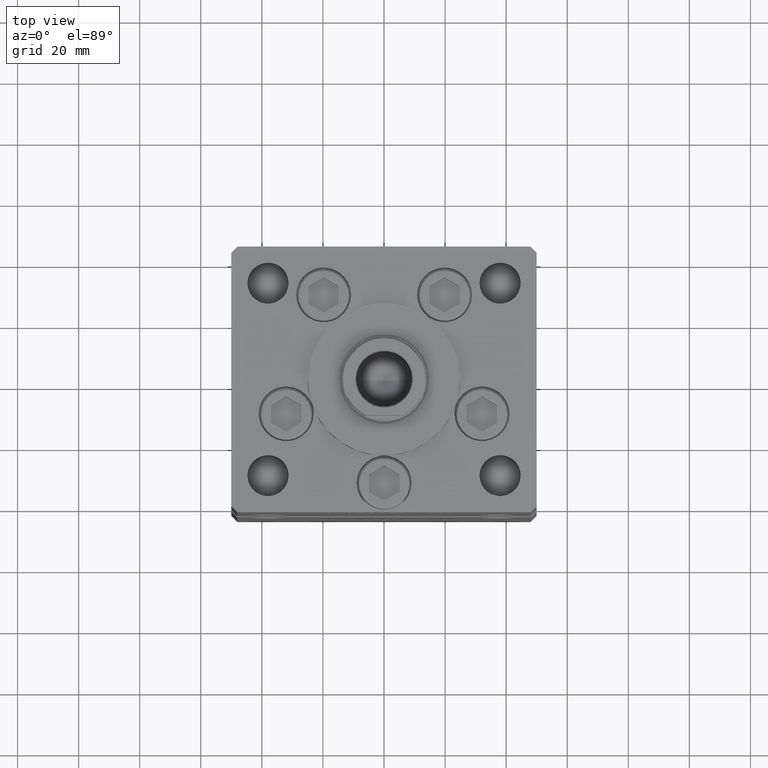
[diagram: clean part render]
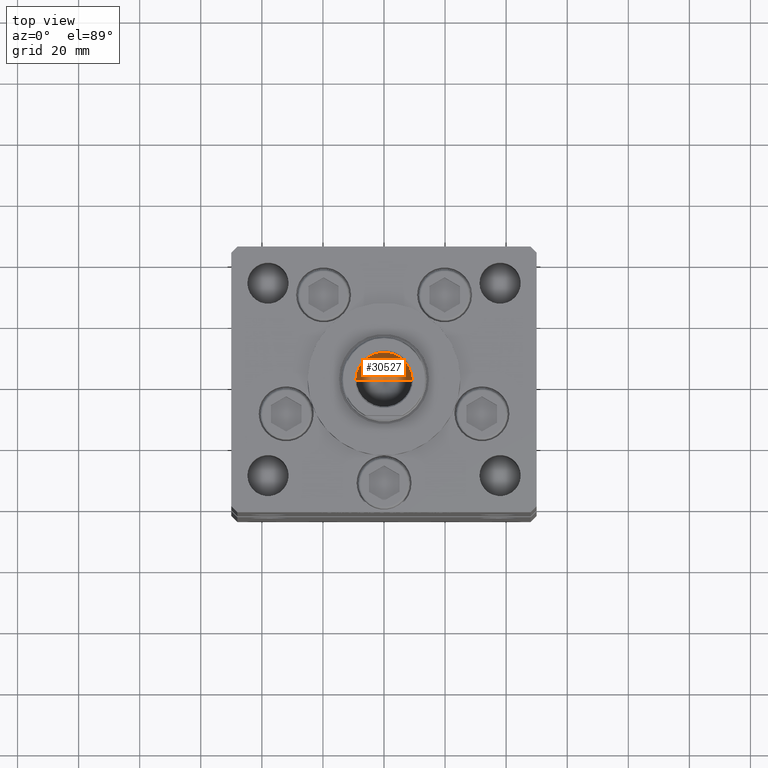
[diagram: same view with one face highlighted and labeled with its STEP entity id]
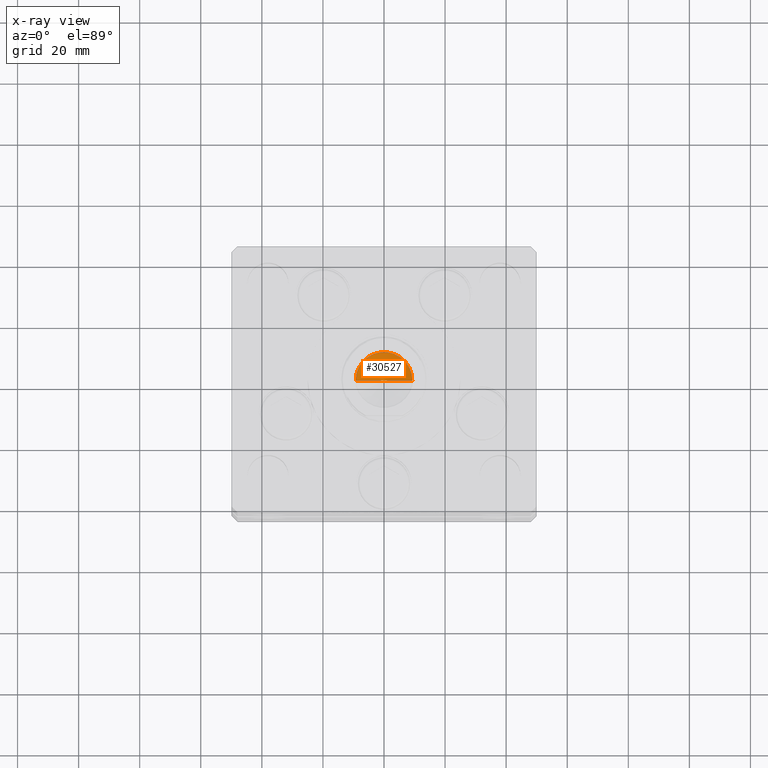
[diagram: x-ray of the same camera — body ghosted, the highlighted face saturated]
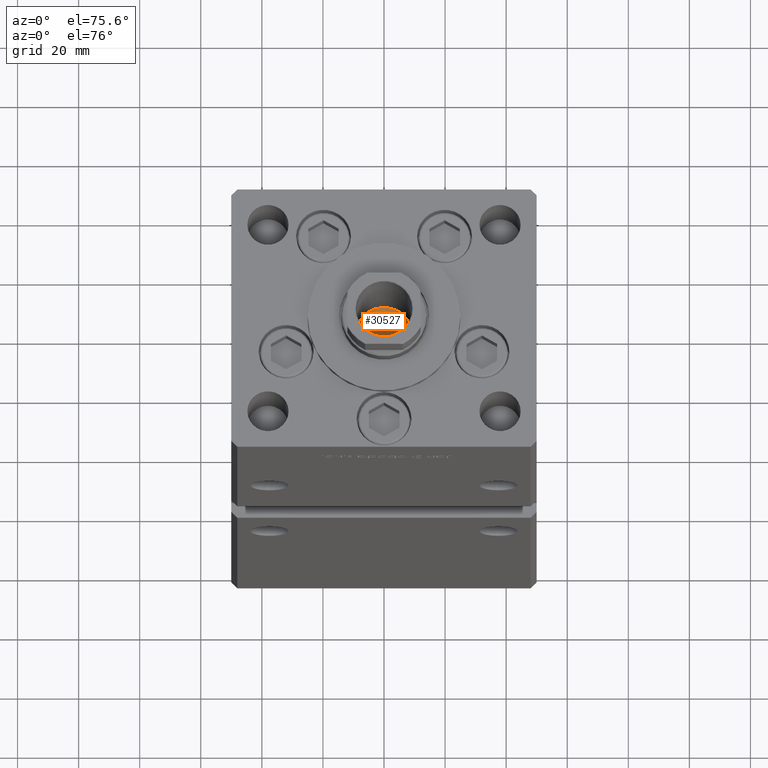
[diagram: same view with one face highlighted and labeled with its STEP entity id]
A machine part, top view. The second image highlights one B-rep face of the part: STEP entity #30527.
The next image is the same camera in x-ray: the body ghosted, the highlighted face saturated — about 0% of this face is hidden behind the body in this view.
A second angle (auxiliary view) of the same face is appended — the face is thin or edge-on in the first view.
In plain terms, the highlighted conical surface has half-angle 59 deg.
Its self-contained STEP definition (entity closure, byte-faithful):
#3446 = VERTEX_POINT ( 'NONE', #27016 ) ;
#6439 = DIRECTION ( 'NONE',  ( -0.8571673007021117785, 1.049727191138617956E-16, 0.5150380749100550437 ) ) ;
#7272 = DIRECTION ( 'NONE',  ( 0.8571673007021117785, 0.000000000000000000, 0.5150380749100550437 ) ) ;
#7951 = ORIENTED_EDGE ( 'NONE', *, *, #16216, .F. ) ;
#8117 = AXIS2_PLACEMENT_3D ( 'NONE', #9192, #25614, #12965 ) ;
#9192 = CARTESIAN_POINT ( 'NONE',  ( 0.000000000000000000, 0.000000000000000000, 130.2500000000000000 ) ) ;
#9718 = FACE_OUTER_BOUND ( 'NONE', #19449, .T. ) ;
#12965 = DIRECTION ( 'NONE',  ( 1.000000000000000000, 0.000000000000000000, 0.000000000000000000 ) ) ;
#14826 = LINE ( 'NONE', #51641, #15155 ) ;
#15155 = VECTOR ( 'NONE', #7272, 1000.000000000000000 ) ;
#15650 = CARTESIAN_POINT ( 'NONE',  ( 0.000000000000000000, 0.000000000000000000, 130.2500000000000000 ) ) ;
#16216 = EDGE_CURVE ( 'NONE', #20821, #3446, #26105, .T. ) ;
#18989 = VECTOR ( 'NONE', #6439, 1000.000000000000000 ) ;
#19449 = EDGE_LOOP ( 'NONE', ( #7951, #19549, #45833 ) ) ;
#19549 = ORIENTED_EDGE ( 'NONE', *, *, #41463, .T. ) ;
#20821 = VERTEX_POINT ( 'NONE', #21947 ) ;
#21947 = CARTESIAN_POINT ( 'NONE',  ( -1.046994375366439223E-14, 0.000000000000000000, 124.6920392739950643 ) ) ;
#25614 = DIRECTION ( 'NONE',  ( -0.000000000000000000, -0.000000000000000000, 1.000000000000000000 ) ) ;
#26105 = LINE ( 'NONE', #46760, #18989 ) ;
#27016 = CARTESIAN_POINT ( 'NONE',  ( -9.249999999999994671, 1.132798289211300909E-15, 130.2500000000000000 ) ) ;
#27043 = VERTEX_POINT ( 'NONE', #51831 ) ;
#30527 = ADVANCED_FACE ( 'NONE', ( #9718 ), #41602, .F. ) ;
#32056 = DIRECTION ( 'NONE',  ( -0.000000000000000000, -0.000000000000000000, 1.000000000000000000 ) ) ;
#36815 = AXIS2_PLACEMENT_3D ( 'NONE', #15650, #32056, #48431 ) ;
#41463 = EDGE_CURVE ( 'NONE', #20821, #27043, #14826, .T. ) ;
#41602 = CONICAL_SURFACE ( 'NONE', #8117, 9.249999999999994671, 1.029744258676653423 ) ;
#45833 = ORIENTED_EDGE ( 'NONE', *, *, #50857, .T. ) ;
#46760 = CARTESIAN_POINT ( 'NONE',  ( -9.249999999999994671, 1.132798289211300909E-15, 130.2500000000000000 ) ) ;
#47901 = CIRCLE ( 'NONE', #36815, 9.249999999999994671 ) ;
#48431 = DIRECTION ( 'NONE',  ( 1.000000000000000000, 0.000000000000000000, 0.000000000000000000 ) ) ;
#50857 = EDGE_CURVE ( 'NONE', #27043, #3446, #47901, .T. ) ;
#51641 = CARTESIAN_POINT ( 'NONE',  ( 9.249999999999994671, 0.000000000000000000, 130.2500000000000000 ) ) ;
#51831 = CARTESIAN_POINT ( 'NONE',  ( 9.249999999999994671, 0.000000000000000000, 130.2500000000000000 ) ) ;